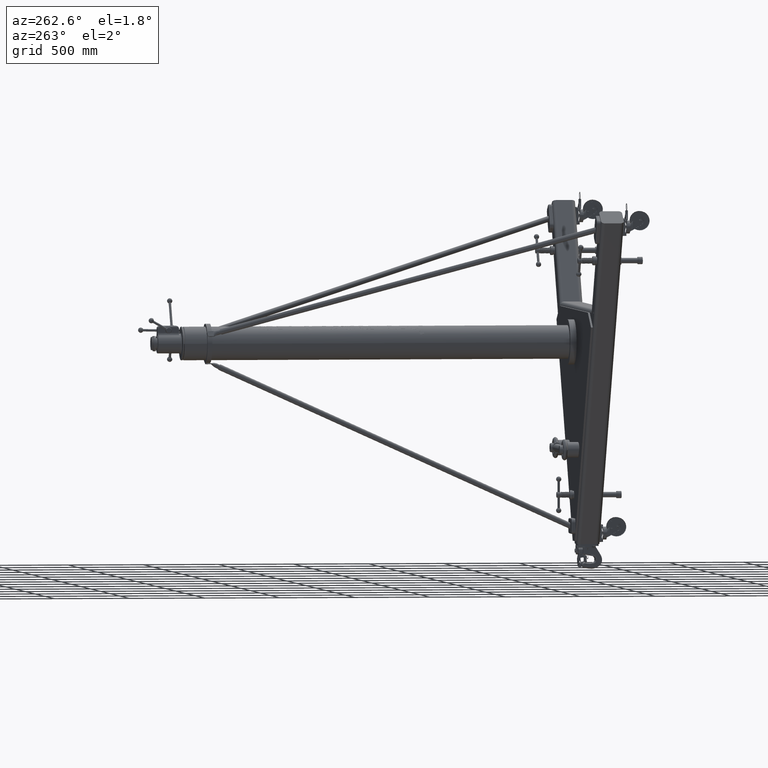
[diagram: clean part render]
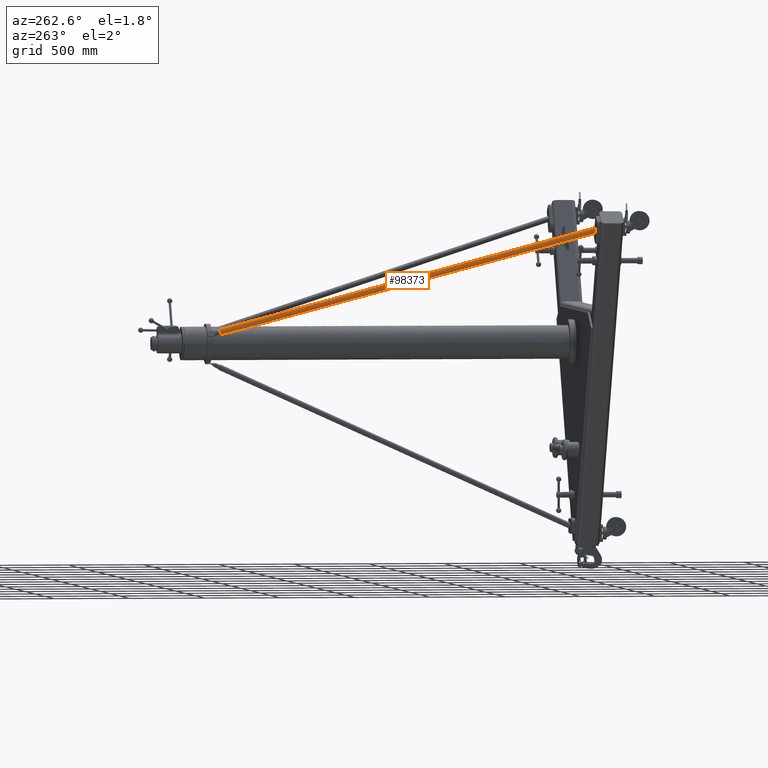
[diagram: same view with one face highlighted and labeled with its STEP entity id]
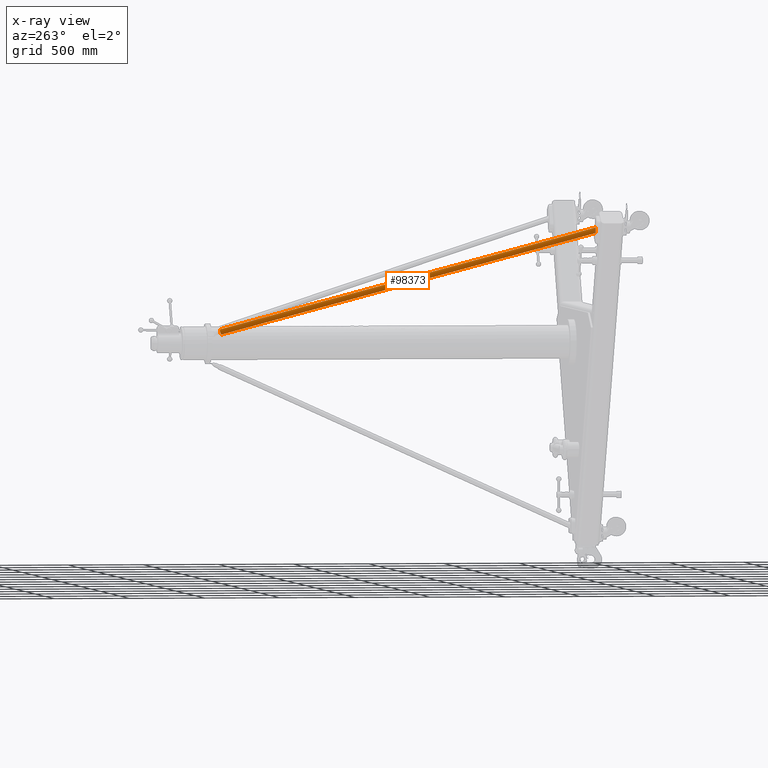
[diagram: x-ray of the same camera — body ghosted, the highlighted face saturated]
A machine part, auxiliary view. The second image highlights one B-rep face of the part: STEP entity #98373.
The next image is the same camera in x-ray: the body ghosted, the highlighted face saturated — about 0% of this face is hidden behind the body in this view.
In plain terms, the highlighted cylindrical surface (edge-blend (fillet) strip) has radius 19.05 mm, axis along (-0.3992, -0.8794, 0.2594).
Its self-contained STEP definition (entity closure, byte-faithful):
#3328 = ORIENTED_EDGE ( 'NONE', *, *, #45234, .T. ) ;
#4067 = EDGE_CURVE ( 'NONE', #11546, #77415, #135597, .T. ) ;
#5684 = CARTESIAN_POINT ( 'NONE',  ( -46.95971681201658754, 3.999999999999507061, 23.29871547655058706 ) ) ;
#5923 = VERTEX_POINT ( 'NONE', #43851 ) ;
#7734 = AXIS2_PLACEMENT_3D ( 'NONE', #76755, #10643, #23838 ) ;
#10643 = DIRECTION ( 'NONE',  ( -0.3991681032779381688, -0.8794157858825903951, 0.2594083669930463132 ) ) ;
#11546 = VERTEX_POINT ( 'NONE', #62134 ) ;
#12167 = CARTESIAN_POINT ( 'NONE',  ( -5.615640350622975063, 96.97227864679516074, -2.704114473455983880 ) ) ;
#23838 = DIRECTION ( 'NONE',  ( -0.3816781713913771634, 0.4166229989519570909, 0.8250739665191310079 ) ) ;
#34720 = ORIENTED_EDGE ( 'NONE', *, *, #4067, .F. ) ;
#43851 = CARTESIAN_POINT ( 'NONE',  ( -5.043123093535906598, 96.34734414836722749, -3.941725423234683667 ) ) ;
#45234 = EDGE_CURVE ( 'NONE', #5923, #124254, #58886, .T. ) ;
#53334 = CARTESIAN_POINT ( 'NONE',  ( -49.22320311021162098, 3.999999999999507949, 24.06964840444184262 ) ) ;
#56986 = DIRECTION ( 'NONE',  ( -0.3991681032779382243, -0.8794157858825905061, 0.2594083669930463687 ) ) ;
#57417 = ORIENTED_EDGE ( 'NONE', *, *, #77285, .T. ) ;
#58886 = LINE ( 'NONE', #83070, #109042 ) ;
#62134 = CARTESIAN_POINT ( 'NONE',  ( -5.615640350622977728, 96.97227864679516074, -2.704114473455982548 ) ) ;
#67701 = AXIS2_PLACEMENT_3D ( 'NONE', #79575, #113373, #136155 ) ;
#76067 = CARTESIAN_POINT ( 'NONE',  ( -46.95971681201658754, 3.999999999999507061, 23.29871547655058706 ) ) ;
#76522 = EDGE_LOOP ( 'NONE', ( #57417, #3328, #136131, #34720 ) ) ;
#76755 = CARTESIAN_POINT ( 'NONE',  ( -5.329381722079442163, 96.65981139758119411, -3.322919948345333108 ) ) ;
#77285 = EDGE_CURVE ( 'Defeatured_800+Defeatured_801+Defeatured_801+Defeatured_801', #11546, #5923, #88771, .T. ) ;
#77415 = VERTEX_POINT ( 'NONE', #94201 ) ;
#79575 = CARTESIAN_POINT ( 'NONE',  ( -5.329381722079442163, 96.65981139758119411, -3.322919948345333108 ) ) ;
#83070 = CARTESIAN_POINT ( 'NONE',  ( -5.043123093535908374, 96.34734414836722749, -3.941725423234682335 ) ) ;
#87077 = CARTESIAN_POINT ( 'NONE',  ( -47.81589274616513308, 3.999999999999507061, 24.72066839552888240 ) ) ;
#87747 = VECTOR ( 'NONE', #56986, 39.37007874015748854 ) ;
#87769 = CYLINDRICAL_SURFACE ( 'NONE', #7734, 0.7500000000000012212 ) ;
#88771 = CIRCLE ( 'NONE', #67701, 0.7500000000000012212 ) ;
#94201 = CARTESIAN_POINT ( 'NONE',  ( -47.81589274616513308, 3.999999999999507061, 24.72066839552888240 ) ) ;
#98373 = ADVANCED_FACE ( 'Defeatured_800', ( #135516 ), #87769, .T. ) ;
#104725 = EDGE_CURVE ( 'Defeatured_8025+Defeatured_800+Defeatured_800+Defeatured_800', #77415, #124254, #126333, .T. ) ;
#108416 = CARTESIAN_POINT ( 'NONE',  ( -48.36702717606310387, 3.999999999999507949, 22.64769548546358635 ) ) ;
#109042 = VECTOR ( 'NONE', #127916, 39.37007874015748854 ) ;
#113373 = DIRECTION ( 'NONE',  ( -0.3991681032779382798, -0.8794157858825906171, 0.2594083669930463687 ) ) ;
#124254 = VERTEX_POINT ( 'NONE', #5684 ) ;
#126333 =( BOUNDED_CURVE ( )  B_SPLINE_CURVE ( 3, ( #87077, #53334, #108416, #76067 ),
 .UNSPECIFIED., .F., .T. ) 
 B_SPLINE_CURVE_WITH_KNOTS ( ( 4, 4 ),
 ( 5.778151713978481041, 8.919744367568251064 ),
 .UNSPECIFIED. ) 
 CURVE ( )  GEOMETRIC_REPRESENTATION_ITEM ( )  RATIONAL_B_SPLINE_CURVE ( ( 1.000000000000000000, 0.3333333333333410864, 0.3333333333333410864, 1.000000000000000000 ) ) 
 REPRESENTATION_ITEM ( '' )  );
#127916 = DIRECTION ( 'NONE',  ( -0.3991681032779382243, -0.8794157858825905061, 0.2594083669930463687 ) ) ;
#135516 = FACE_OUTER_BOUND ( 'NONE', #76522, .T. ) ;
#135597 = LINE ( 'NONE', #12167, #87747 ) ;
#136131 = ORIENTED_EDGE ( 'NONE', *, *, #104725, .F. ) ;
#136155 = DIRECTION ( 'NONE',  ( -0.3816781713913771634, 0.4166229989519570909, 0.8250739665191310079 ) ) ;